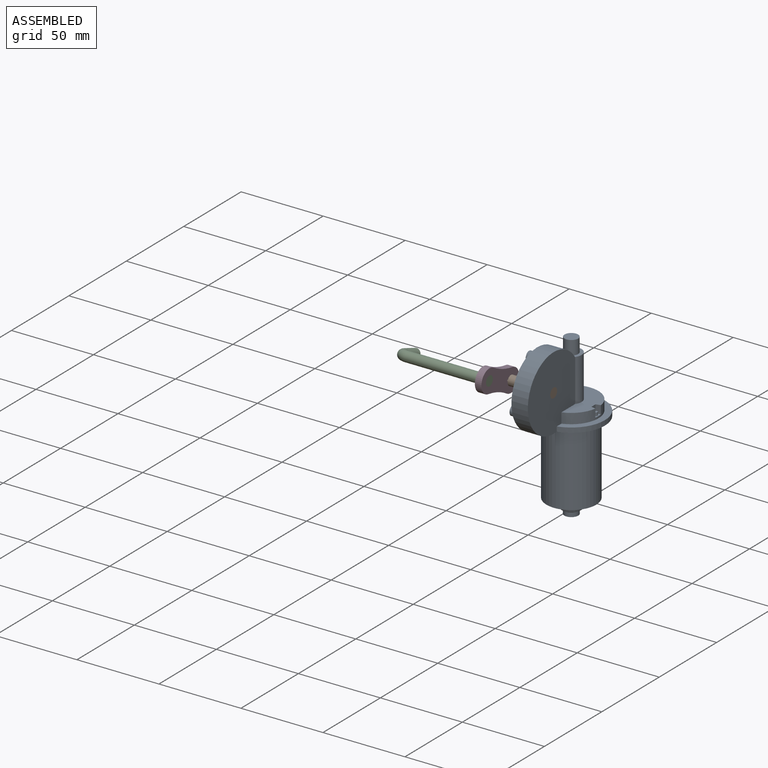
[diagram: assembled view]
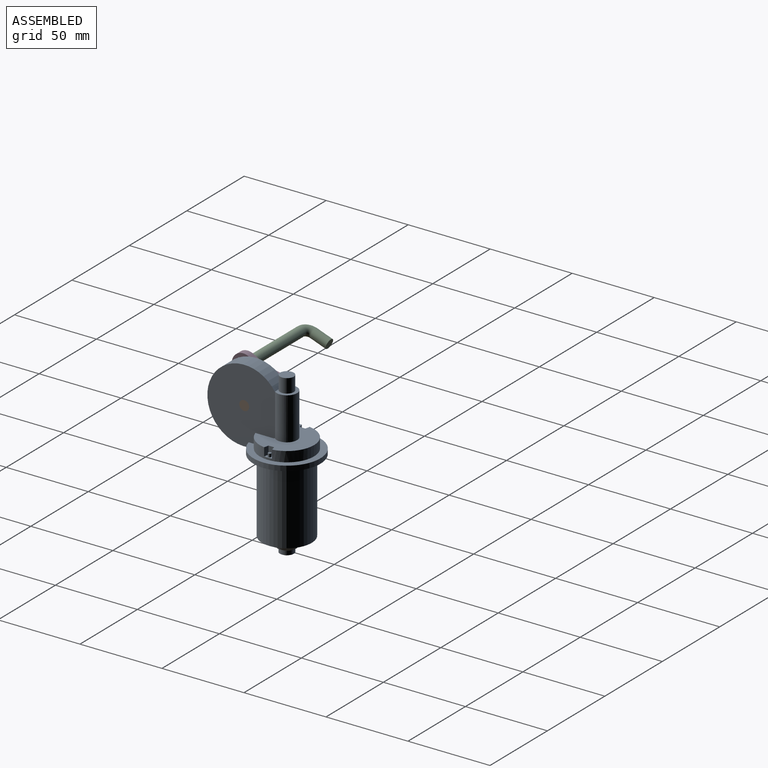
[diagram: assembled view, second angle]
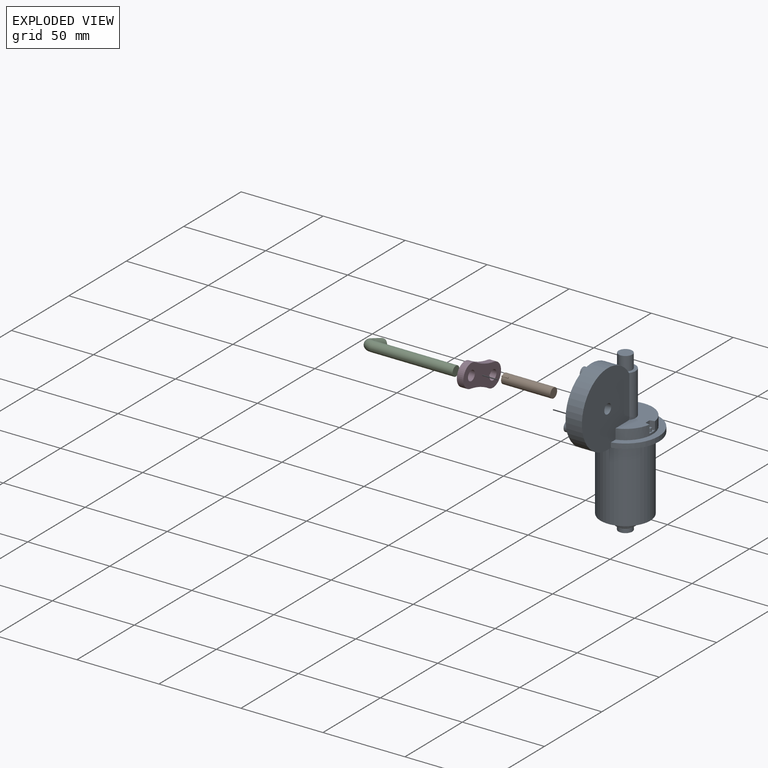
[diagram: exploded view]
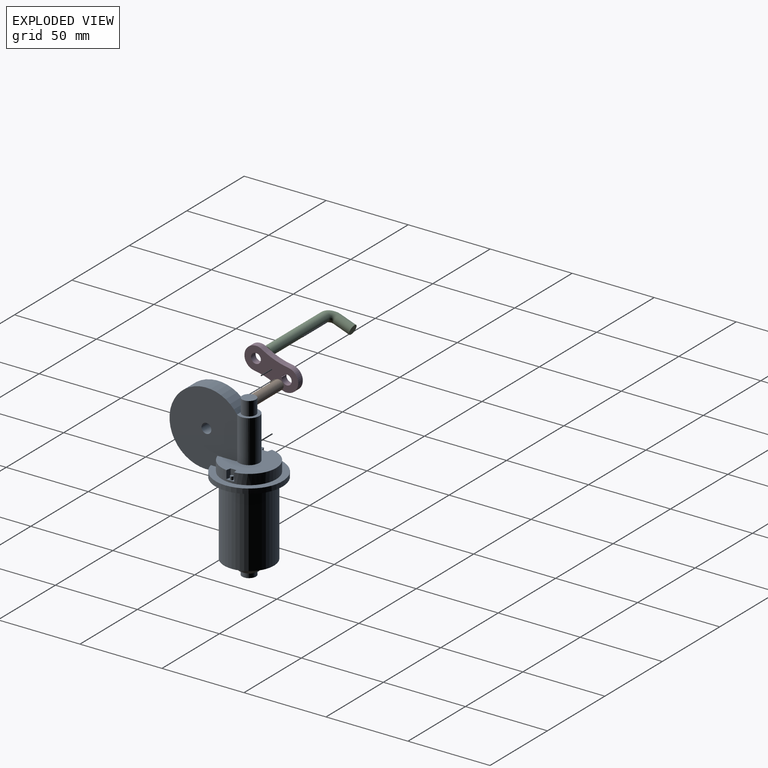
[diagram: exploded view, second angle]
ASSEMBLY  parts=4 mates=3
PART A: 58 faces, bbox 40.9x65.5x100.3 mm
  f0: plane 45.01x41.3mm, normal (-1,0,0), area 1201.8mm2, adj f1,f2,f3,f4,f5,f6,f7,f18
  f1: cylinder r=7.32mm len=10.85mm, axis (1,0,0), area 105.2mm2, adj f0,f27,f51,f56
  f2: cylinder r=3mm len=6mm, axis (1,0,0), area 93mm2, adj f0,f47,f55,f56,f57
  f3: cylinder r=7.32mm len=12.53mm, axis (1,0,0), area 105.2mm2, adj f0,f27,f53,f57
  f4: cylinder r=3mm len=6mm, axis (1,0,0), area 93mm2, adj f0,f44,f52,f53,f54
  f5: cylinder r=3mm len=6mm, axis (1,0,0), area 93mm2, adj f0,f29,f49,f50,f51
  f6: plane 32.75x32.32mm, normal (0,0,1), area 605.6mm2, adj f0,f7,f20,f21,f23,f24,f31,f32
  f7: cylinder r=6.23mm len=25.9mm, axis (0,0,1), area 713.6mm2, adj f0,f6,f8,f21,f22,f23,f24
  f8: plane 12.46x10.11mm, normal (0,0,1), area 51.9mm2, adj f7,f9,f22
  f9: cylinder r=4.17mm len=8.51mm, axis (0,0,1), area 222.8mm2, adj f8,f10,f22
  f10: plane 8.34x8.34mm, normal (0,0,1), area 54.6mm2, adj f9
  f11: revolved ~8.46x8.46mm, area 61mm2, adj f12
  f12: cylinder r=4.23mm len=8.46mm, axis (0,0,1), area 67.1mm2, adj f11,f13
  f13: cone r=4.23mm half-angle=61.1deg, axis (0,0,1), area 58.9mm2, adj f12,f14
  f14: cone r=5.86mm half-angle=24.1deg, axis (0,0,1), area 268.8mm2, adj f13,f15
  f15: plane 30.32x30.32mm, normal (0,0,-1), area 504.2mm2, adj f14,f16
  f16: cylinder r=15.16mm len=45mm, axis (0,0,1), area 4285.9mm2, adj f15,f17
  f17: plane 40.9x40.9mm, normal (0,0,-1), area 592.2mm2, adj f16,f18
  f18: cylinder r=20.45mm len=40.9mm, axis (0,0,1), area 356.8mm2, adj f0,f17,f19,f21,f22
  f19: plane 40.9x40.28mm, normal (0,0,1), area 414.3mm2, adj f0,f18,f20,f21
  f20: cylinder r=16.55mm len=33.09mm, axis (0,0,1), area 536.5mm2, adj f0,f6,f19,f21,f31,f33,f34,f37
  f21: plane 45x41.29mm, normal (1,0,0), area 1432.1mm2, adj f6,f7,f18,f19,f20,f22,f23,f25
  f22: cylinder r=22.5mm len=45mm, axis (-1,0,0), area 947.8mm2, adj f0,f7,f8,f9,f18,f21
  f23: cylinder r=22.5mm len=0.89mm, axis (-1,0,0), area 0.3mm2, adj f6,f7,f21
  f24: cylinder r=22.5mm len=0.89mm, axis (-1,0,0), area 0.3mm2, adj f0,f6,f7
  f25: cylinder r=3mm len=17mm, axis (-1,0,0), area 320.4mm2, adj f21,f27
  f26: cylinder r=7.32mm len=10.85mm, axis (1,0,0), area 105.2mm2, adj f0,f27,f50,f54
  f27: plane 14.66x14.66mm, normal (-1,0,0), area 140.2mm2, adj f1,f3,f25,f26,f49,f52,f55
  f28: cylinder r=1.5mm len=5mm, axis (1,0,0), area 47.1mm2, adj f29,f30
  f29: plane 6x6mm, normal (-1,0,0), area 21.2mm2, adj f5,f28
  f30: plane 3x3mm, normal (-1,0,0), area 7.1mm2, adj f28
  f31: plane 5x2.85mm, normal (0.22,-0.98,0), area 14.6mm2, adj f6,f20,f32,f34
  f32: plane 5x3.51mm, normal (1,0,0), area 17.5mm2, adj f6,f31,f33,f34
  f33: plane 5x2.85mm, normal (0.22,0.98,0), area 14.6mm2, adj f6,f20,f32,f34
  f34: plane 4.79x3.03mm, normal (0,0,1), area 9.5mm2, adj f20,f31,f32,f33,f35
  f35: cylinder r=0.96mm len=2mm, axis (0,0,-1), area 12.1mm2, adj f34,f36
  f36: plane 1.93x1.93mm, normal (0,0,1), area 2.9mm2, adj f35
  f37: plane 5x2.85mm, normal (-0.22,0.98,0), area 14.6mm2, adj f6,f20,f38,f40
  f38: plane 5x3.51mm, normal (-1,0,0), area 17.5mm2, adj f6,f37,f39,f40
  f39: plane 5x2.85mm, normal (-0.22,-0.98,0), area 14.6mm2, adj f6,f20,f38,f40
  f40: plane 4.79x3.03mm, normal (0,0,1), area 9.5mm2, adj f20,f37,f38,f39,f41
  f41: cylinder r=0.96mm len=2mm, axis (0,0,-1), area 12.1mm2, adj f40,f42
  f42: plane 1.93x1.93mm, normal (0,0,1), area 2.9mm2, adj f41
  f43: cylinder r=1.5mm len=5mm, axis (1,0,0), area 47.1mm2, adj f44,f45
  f44: plane 6x6mm, normal (-1,0,0), area 21.2mm2, adj f4,f43
  f45: plane 3x3mm, normal (-1,0,0), area 7.1mm2, adj f43
  f46: cylinder r=1.5mm len=5mm, axis (1,0,0), area 47.1mm2, adj f47,f48
  f47: plane 6x6mm, normal (-1,0,0), area 21.2mm2, adj f2,f46
  f48: plane 3x3mm, normal (-1,0,0), area 7.1mm2, adj f46
  f49: plane 5.94x2.71mm, normal (-0.91,0,0.41), area 2mm2, adj f5,f27,f50,f51
  f50: plane 7.01x5.94mm, normal (0,-1,0), area 33.5mm2, adj f0,f5,f26,f49
  f51: plane 7.01x5.94mm, normal (0,1,0), area 33.5mm2, adj f0,f1,f5,f49
  f52: plane 5.29x3.23mm, normal (-0.91,-0.36,-0.21), area 2mm2, adj f4,f27,f53,f54
  f53: plane 7.01x5.14mm, normal (0,0.5,-0.87), area 33.5mm2, adj f0,f3,f4,f52
  f54: plane 7.01x5.14mm, normal (0,-0.5,0.87), area 33.5mm2, adj f0,f4,f26,f52
  f55: plane 5.29x3.23mm, normal (-0.91,0.36,-0.21), area 2mm2, adj f2,f27,f56,f57
  f56: plane 7.01x5.14mm, normal (0,0.5,0.87), area 33.5mm2, adj f0,f1,f2,f55
  f57: plane 7.01x5.14mm, normal (0,-0.5,-0.87), area 33.5mm2, adj f0,f2,f3,f55
PART B: 7 faces, bbox 6.5x30x6 mm
  f0: cylinder r=3mm len=30mm, axis (0,1,0), area 563.1mm2, adj f1,f2,f4,f5,f6
  f1: plane 6x6mm, normal (0,-1,0), area 28.3mm2, adj f0
  f2: plane 6.49x6mm, normal (0,1,0), area 28.6mm2, adj f0,f3,f4,f5
  f3: plane 4x0.6mm, normal (-1,0,0), area 2.4mm2, adj f2,f4,f5,f6
  f4: plane 4x0.5mm, normal (0,0,1), area 2mm2, adj f0,f2,f3,f6
  f5: plane 4x0.5mm, normal (0,0,-1), area 2mm2, adj f0,f2,f3,f6
  f6: plane 0.6x0.5mm, normal (0,-1,0), area 0.3mm2, adj f0,f3,f4,f5
PART C: 5 faces, bbox 58.6x6x18.6 mm
  f0: plane 6x6mm, normal (1,0,0), area 28.3mm2, adj f2
  f1: plane 6x6mm, normal (0,0,-1), area 28.3mm2, adj f4
  f2: cylinder r=3mm len=50mm, axis (-1,0,0), area 942.5mm2, adj f0,f3
  f3: torus R=4.9mm, axis (0,-1,0), area 145.1mm2, adj f2,f4
  f4: cylinder r=3mm len=10mm, axis (0,0,-1), area 188.5mm2, adj f1,f3
PART D: 11 faces, bbox 14x4x34 mm
  f0: cylinder r=3mm len=6mm, axis (0,1,0), area 73mm2, adj f1,f8,f9,f10
  f1: plane 4x0.5mm, normal (1,0,0), area 2mm2, adj f0,f2,f9,f10
  f2: plane 4x0.6mm, normal (0,0,-1), area 2.4mm2, adj f1,f8,f9,f10
  f3: cylinder r=42.48mm len=17.17mm, axis (0,1,0), area 69.2mm2, adj f4,f7,f9,f10
  f4: cylinder r=7mm len=14mm, axis (0,1,0), area 99.4mm2, adj f3,f5,f9,f10
  f5: cylinder r=42.48mm len=17.17mm, axis (0,1,0), area 69.2mm2, adj f4,f7,f9,f10
  f6: cylinder r=3mm len=6mm, axis (0,1,0), area 75.4mm2, adj f9,f10
  f7: cylinder r=7mm len=14mm, axis (0,1,0), area 99.4mm2, adj f3,f5,f9,f10
  f8: plane 4x0.5mm, normal (-1,0,0), area 2mm2, adj f0,f2,f9,f10
  f9: plane 34x14mm, normal (0,-1,0), area 351.8mm2, adj f0,f1,f2,f3,f4,f5,f6,f7
  f10: plane 34x14mm, normal (0,1,0), area 351.8mm2, adj f0,f1,f2,f3,f4,f5,f6,f7
PLACE A t=(-42.23,-23.39,-6.55)mm fixed
PLACE B rot(axis=(-0.35,0.35,0.87),97.9deg) t=(-67.23,-45.89,15.95)mm
PLACE C rot(axis=(1,0,0),70.1deg) t=(-63.23,-64.69,22.76)mm
PLACE D rot(axis=(0.5,0.5,-0.71),109.2deg) t=(-63.23,-45.89,15.95)mm
MATE revolute B.f0 <-> A.f1  axis (-1,0,0) through (-37.23,-45.89,15.95)mm
MATE revolute D.f0 <-> B.f0  axis (-1,0,0) through (-67.23,-45.89,15.95)mm
MATE fastened C.f2 <-> D.f6  axis (1,0,0) through (-63.23,-64.69,22.76)mm
